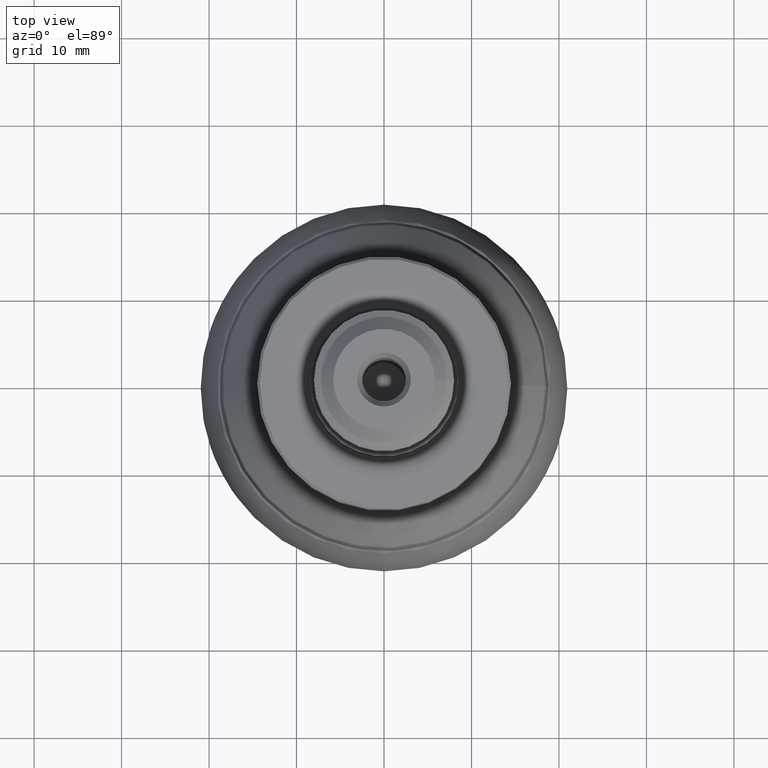
[diagram: clean part render]
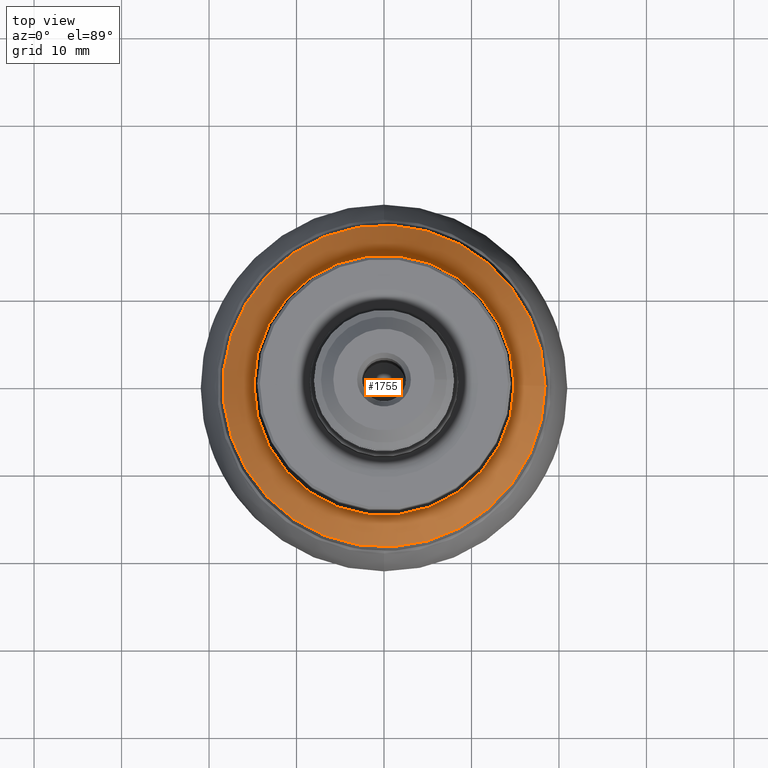
[diagram: same view with one face highlighted and labeled with its STEP entity id]
A machine part, top view. The second image highlights one B-rep face of the part: STEP entity #1755.
In plain terms, the highlighted conical surface has half-angle 31.053 deg.
Its self-contained STEP definition (entity closure, byte-faithful):
#44 = AXIS2_PLACEMENT_3D ( 'NONE', #1535, #750, #1716 ) ;
#75 = ORIENTED_EDGE ( 'NONE', *, *, #3187, .T. ) ;
#195 = VERTEX_POINT ( 'NONE', #2489 ) ;
#224 = EDGE_CURVE ( 'NONE', #2877, #2877, #2266, .T. ) ;
#750 = DIRECTION ( 'NONE',  ( -0.0000000000000000000, -0.0000000000000000000, 1.000000000000000000 ) ) ;
#802 = DIRECTION ( 'NONE',  ( -0.0000000000000000000, -0.0000000000000000000, 1.000000000000000000 ) ) ;
#972 = EDGE_LOOP ( 'NONE', ( #2433 ) ) ;
#1180 = EDGE_LOOP ( 'NONE', ( #75 ) ) ;
#1351 = CIRCLE ( 'NONE', #2161, 14.87324979004137900 ) ;
#1535 = CARTESIAN_POINT ( 'NONE',  ( 0.0000000000000000000, 0.0000000000000000000, -16.19523027285681800 ) ) ;
#1716 = DIRECTION ( 'NONE',  ( 1.000000000000000000, 0.0000000000000000000, 0.0000000000000000000 ) ) ;
#1755 = ADVANCED_FACE ( 'NONE', ( #2254, #2078 ), #3439, .T. ) ;
#2010 = CARTESIAN_POINT ( 'NONE',  ( 18.39734323112062200, 0.0000000000000000000, -16.19523027285681800 ) ) ;
#2046 = DIRECTION ( 'NONE',  ( -0.0000000000000000000, -0.0000000000000000000, 1.000000000000000000 ) ) ;
#2078 = FACE_BOUND ( 'NONE', #1180, .T. ) ;
#2161 = AXIS2_PLACEMENT_3D ( 'NONE', #2249, #2046, #3162 ) ;
#2249 = CARTESIAN_POINT ( 'NONE',  ( 0.0000000000000000000, 0.0000000000000000000, -22.04796044689656800 ) ) ;
#2254 = FACE_OUTER_BOUND ( 'NONE', #972, .T. ) ;
#2266 = CIRCLE ( 'NONE', #44, 18.39734323112062200 ) ;
#2433 = ORIENTED_EDGE ( 'NONE', *, *, #224, .F. ) ;
#2489 = CARTESIAN_POINT ( 'NONE',  ( 14.87324979004137900, 0.0000000000000000000, -22.04796044689656800 ) ) ;
#2877 = VERTEX_POINT ( 'NONE', #2010 ) ;
#2966 = CARTESIAN_POINT ( 'NONE',  ( 0.0000000000000000000, 0.0000000000000000000, -22.04796044689656800 ) ) ;
#3001 = AXIS2_PLACEMENT_3D ( 'NONE', #2966, #802, #3146 ) ;
#3146 = DIRECTION ( 'NONE',  ( 1.000000000000000000, 0.0000000000000000000, 0.0000000000000000000 ) ) ;
#3162 = DIRECTION ( 'NONE',  ( 1.000000000000000000, 0.0000000000000000000, 0.0000000000000000000 ) ) ;
#3187 = EDGE_CURVE ( 'NONE', #195, #195, #1351, .T. ) ;
#3439 = CONICAL_SURFACE ( 'NONE', #3001, 14.87324979004137900, 0.5419828284187308000 ) ;